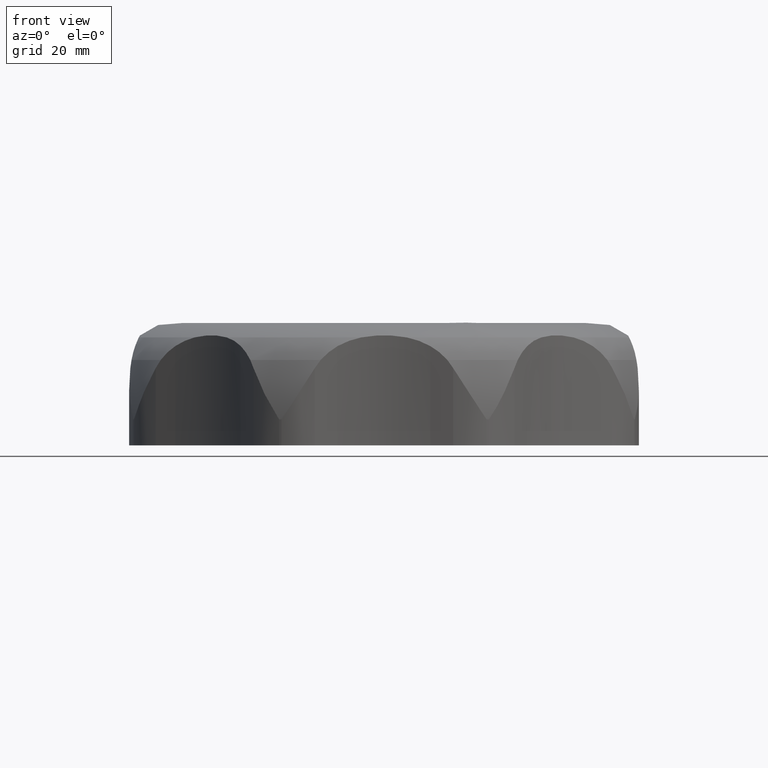
[diagram: clean part render]
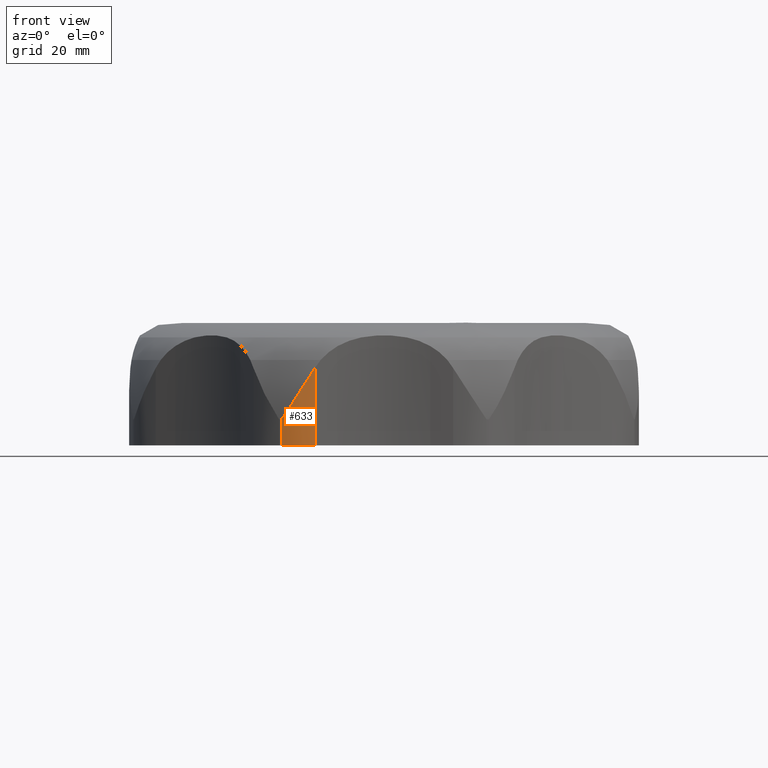
[diagram: same view with one face highlighted and labeled with its STEP entity id]
A machine part, front view. The second image highlights one B-rep face of the part: STEP entity #633.
In plain terms, the highlighted cylindrical surface (partial cylindrical patch) has radius 13 mm, axis along (0, 0, -1).
Its self-contained STEP definition (entity closure, byte-faithful):
#633 = ADVANCED_FACE( '', ( #3503 ), #3504, .T. );
#3503 = FACE_OUTER_BOUND( '', #8227, .T. );
#3504 = CYLINDRICAL_SURFACE( '', #8228, 13.0000000000000 );
#8227 = EDGE_LOOP( '', ( #20120, #20121, #20122, #20123 ) );
#8228 = AXIS2_PLACEMENT_3D( '', #20124, #20125, #20126 );
#20120 = ORIENTED_EDGE( '', *, *, #37202, .T. );
#20121 = ORIENTED_EDGE( '', *, *, #32230, .T. );
#20122 = ORIENTED_EDGE( '', *, *, #37204, .T. );
#20123 = ORIENTED_EDGE( '', *, *, #37205, .T. );
#20124 = CARTESIAN_POINT( '', ( -17.9861213211593, -43.4223380280305, -174.263509895744 ) );
#20125 = DIRECTION( '', ( 0.000000000000000, 0.000000000000000, -1.00000000000000 ) );
#20126 = DIRECTION( '', ( -0.838208748931108, 0.545349514729175, 0.000000000000000 ) );
#32230 = EDGE_CURVE( '', #39030, #39028, #39031, .T. );
#37202 = EDGE_CURVE( '', #48417, #39030, #48418, .F. );
#37204 = EDGE_CURVE( '', #39028, #48420, #48421, .T. );
#37205 = EDGE_CURVE( '', #48420, #48417, #48422, .T. );
#39028 = VERTEX_POINT( '', #50285 );
#39030 = VERTEX_POINT( '', #50288 );
#39031 = CIRCLE( '', #50289, 13.0000000000000 );
#48417 = VERTEX_POINT( '', #75125 );
#48418 = LINE( '', #75126, #75127 );
#48420 = VERTEX_POINT( '', #75129 );
#48421 = LINE( '', #75130, #75131 );
#48422 = B_SPLINE_CURVE_WITH_KNOTS( '', 3, ( #75132, #75133, #75134, #75135, #75136, #75137, #75138, #75139, #75140, #75141, #75142, #75143, #75144, #75145 ), .UNSPECIFIED., .F., .F., ( 4, 2, 2, 2, 2, 2, 4 ), ( 3.66671776299814E-007, 0.00680483717724937, 0.0102070724299859, 0.0119081900563542, 0.0127587488695383, 0.0131840282761304, 0.0136093076827224 ), .UNSPECIFIED. );
#50285 = CARTESIAN_POINT( '', ( -15.2940459518450, -56.1405427050252, 0.000261586541951825 ) );
#50288 = CARTESIAN_POINT( '', ( -22.6988763283933, -55.5380278656663, 0.000261586541951825 ) );
#50289 = AXIS2_PLACEMENT_3D( '', #78909, #78910, #78911 );
#75125 = CARTESIAN_POINT( '', ( -22.6988763284069, -55.5380278656607, 5.74965444315344 ) );
#75126 = CARTESIAN_POINT( '', ( -22.6988763283933, -55.5380278656663, 13.6002615865420 ) );
#75127 = VECTOR( '', #79652, 1000.00000000000 );
#75129 = CARTESIAN_POINT( '', ( -15.2940459518450, -56.1405427050252, 17.1142435614119 ) );
#75130 = CARTESIAN_POINT( '', ( -15.2940459518450, -56.1405427050252, -174.263509895744 ) );
#75131 = VECTOR( '', #79656, 1000.00000000000 );
#75132 = CARTESIAN_POINT( '', ( -15.2940459518450, -56.1405427050255, 17.1142435614118 ) );
#75133 = CARTESIAN_POINT( '', ( -16.5251905176270, -56.4011403322678, 15.2139249482884 ) );
#75134 = CARTESIAN_POINT( '', ( -17.7608212962556, -56.4779007521181, 13.3129759701209 ) );
#75135 = CARTESIAN_POINT( '', ( -19.5916177089900, -56.3373293514738, 10.4420980317901 ) );
#75136 = CARTESIAN_POINT( '', ( -20.1985477185152, -56.2474883756976, 9.47993791987735 ) );
#75137 = CARTESIAN_POINT( '', ( -21.1004741168203, -56.0475364290523, 8.04557915939006 ) );
#75138 = CARTESIAN_POINT( '', ( -21.3994152410939, -55.9702393627767, 7.56821379207193 ) );
#75139 = CARTESIAN_POINT( '', ( -21.8548707345268, -55.8343434582245, 6.86039596760154 ) );
#75140 = CARTESIAN_POINT( '', ( -22.0075867569604, -55.7858362919649, 6.62562355106964 ) );
#75141 = CARTESIAN_POINT( '', ( -22.2464096613311, -55.7047242641009, 6.28144101875560 ) );
#75142 = CARTESIAN_POINT( '', ( -22.3275874692424, -55.6763187575307, 6.16800224754182 ) );
#75143 = CARTESIAN_POINT( '', ( -22.4996449229079, -55.6139940570682, 5.94856636842442 ) );
#75144 = CARTESIAN_POINT( '', ( -22.5880232216294, -55.5811474520019, 5.84071250537862 ) );
#75145 = CARTESIAN_POINT( '', ( -22.6988763283984, -55.5380278656643, 5.74965444314717 ) );
#78909 = CARTESIAN_POINT( '', ( -17.9861213211593, -43.4223380280305, 0.000261586541951825 ) );
#78910 = DIRECTION( '', ( 2.34318281388423E-017, -5.65694372839885E-017, 1.00000000000000 ) );
#78911 = DIRECTION( '', ( 0.382683432365090, -0.923879532511287, -6.12303176911189E-017 ) );
#79652 = DIRECTION( '', ( 0.000000000000000, 0.000000000000000, 1.00000000000000 ) );
#79656 = DIRECTION( '', ( 0.000000000000000, 0.000000000000000, 1.00000000000000 ) );